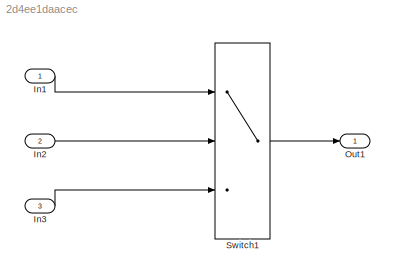
MODEL slx_2d4ee1daacec
KIND model
CONFIG AbsTol = auto
CONFIG EnableMultiTasking = off
CONFIG FixedStep = auto
CONFIG MaxStep = auto
CONFIG MinStep = auto
CONFIG RelTol = 1e-3
CONFIG SampleTimeConstraint = Unconstrained
CONFIG SolverName = VariableStepAuto
CONFIG StartTime = 0.0
CONFIG StopTime = 10.0
BLOCK [Inport] In1
BLOCK [Inport] In2
  Port = 2
BLOCK [Inport] In3
  Port = 3
BLOCK [Outport] Out1
BLOCK [Switch] Switch1
  InputSameDT = off
  SaturateOnIntegerOverflow = off
LINE In1:1 -> Switch1:1
LINE In2:1 -> Switch1:2
LINE In3:1 -> Switch1:3
LINE Switch1:1 -> Out1:1
